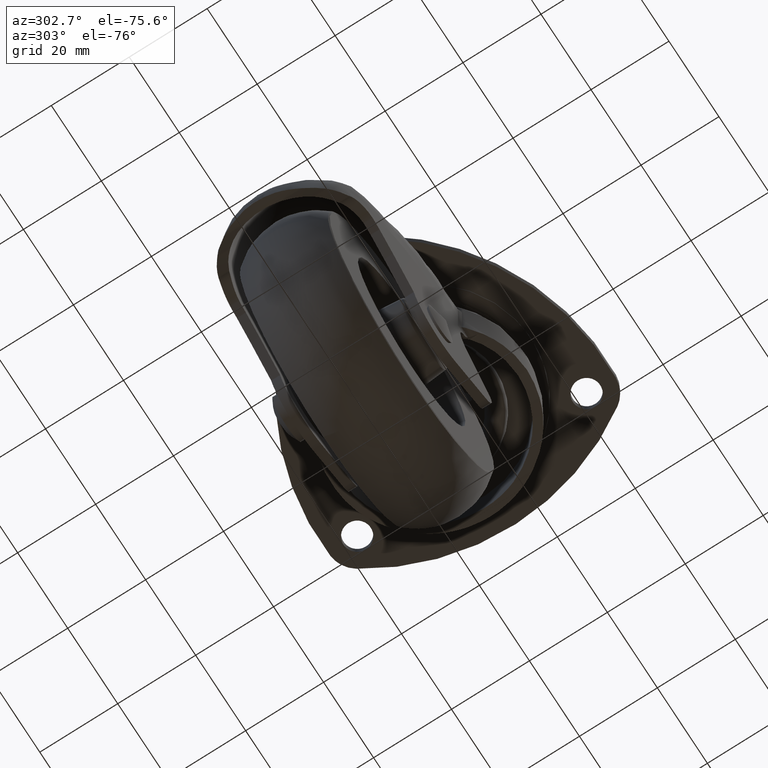
[diagram: clean part render]
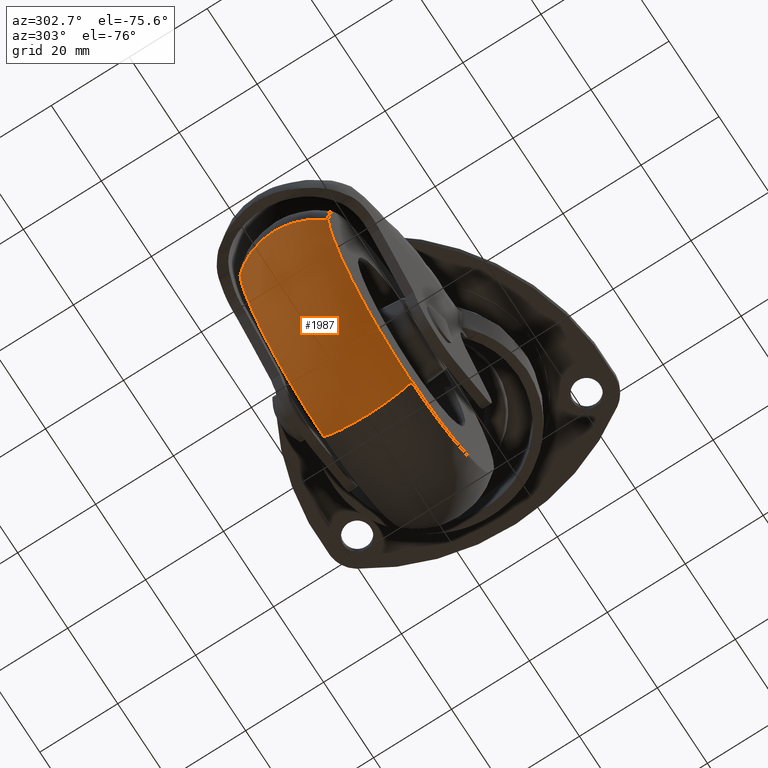
[diagram: same view with one face highlighted and labeled with its STEP entity id]
A machine part, auxiliary view. The second image highlights one B-rep face of the part: STEP entity #1987.
In plain terms, the highlighted face is a freeform B-spline surface patch.
Its self-contained STEP definition (entity closure, byte-faithful):
#1595=CARTESIAN_POINT('',(0.416828760800107,11.333333355749589,-90.668432805636684));
#1596=VERTEX_POINT('',#1595);
#1612=CARTESIAN_POINT('',(0.0,11.333333356382060,-90.671051851883405));
#1613=VERTEX_POINT('',#1612);
#1614=CARTESIAN_POINT('',(0.416828760800107,11.333333355749589,-90.668432805636684));
#1615=CARTESIAN_POINT('',(0.208422608607754,11.333333356382063,-90.671051851883405));
#1616=CARTESIAN_POINT('',(0.0,11.333333356382060,-90.671051851883405));
#1624=(BOUNDED_CURVE()B_SPLINE_CURVE(2,(#1614,#1615,#1616),.UNSPECIFIED.,.F.,.U.)B_SPLINE_CURVE_WITH_KNOTS((3,3),(0.497784295919083,0.500000000000000),.UNSPECIFIED.)CURVE()GEOMETRIC_REPRESENTATION_ITEM()RATIONAL_B_SPLINE_CURVE((0.994854295637923,0.997404141199208,1.0))REPRESENTATION_ITEM(''));
#1625=EDGE_CURVE('',#1596,#1613,#1624,.T.);
#1627=CARTESIAN_POINT('',(-33.090302693076737,11.333333355856499,-59.813125304016403));
#1628=VERTEX_POINT('',#1627);
#1629=CARTESIAN_POINT('',(0.0,11.333333356382060,-90.671051851883405));
#1630=CARTESIAN_POINT('',(-30.933228114146491,11.333333356382060,-90.671051851883419));
#1631=CARTESIAN_POINT('',(-33.090302693076737,11.333333355856494,-59.813125304016395));
#1639=(BOUNDED_CURVE()B_SPLINE_CURVE(2,(#1629,#1630,#1631),.UNSPECIFIED.,.F.,.U.)B_SPLINE_CURVE_WITH_KNOTS((3,3),(0.500000000000000,0.737833686533324),.UNSPECIFIED.)CURVE()GEOMETRIC_REPRESENTATION_ITEM()RATIONAL_B_SPLINE_CURVE((1.0,0.721360504035940,0.972879876383238))REPRESENTATION_ITEM(''));
#1640=EDGE_CURVE('',#1613,#1628,#1639,.T.);
#1838=CARTESIAN_POINT('',(-33.090302804285010,-11.333333300399801,-59.813125311760203));
#1839=VERTEX_POINT('',#1838);
#1840=CARTESIAN_POINT('',(-33.090302804285017,-11.333333300399797,-59.813125311760203));
#1841=CARTESIAN_POINT('',(-43.202467799018386,0.000000077401135,-60.520000221249369));
#1842=CARTESIAN_POINT('',(-33.090302693076730,11.333333355856498,-59.813125304016395));
#1850=(BOUNDED_CURVE()B_SPLINE_CURVE(2,(#1840,#1841,#1842),.UNSPECIFIED.,.F.,.U.)B_SPLINE_CURVE_WITH_KNOTS((3,3),(-1.710040864885921,-0.289959127885270),.UNSPECIFIED.)CURVE()GEOMETRIC_REPRESENTATION_ITEM()RATIONAL_B_SPLINE_CURVE((0.868722746552523,0.647507706763222,0.868722748804677))REPRESENTATION_ITEM(''));
#1851=EDGE_CURVE('',#1839,#1628,#1850,.T.);
#1902=CARTESIAN_POINT('',(0.416828762165187,-11.333333300299740,-90.668432917099764));
#1903=VERTEX_POINT('',#1902);
#1917=CARTESIAN_POINT('',(0.416828762165187,-11.333333300299737,-90.668432917099750));
#1918=CARTESIAN_POINT('',(0.544208714928569,0.000000077388814,-100.804473927150990));
#1919=CARTESIAN_POINT('',(0.416828760800107,11.333333355749588,-90.668432805636684));
#1927=(BOUNDED_CURVE()B_SPLINE_CURVE(2,(#1917,#1918,#1919),.UNSPECIFIED.,.F.,.U.)B_SPLINE_CURVE_WITH_KNOTS((3,3),(-1.710040864869099,-0.289959127903242),.UNSPECIFIED.)CURVE()GEOMETRIC_REPRESENTATION_ITEM()RATIONAL_B_SPLINE_CURVE((0.888713648390262,0.662408045294405,0.888713650693876))REPRESENTATION_ITEM(''));
#1928=EDGE_CURVE('',#1903,#1596,#1927,.T.);
#1936=CARTESIAN_POINT('',(0.407129190061715,-12.141247478081578,-89.896606140943092));
#1937=CARTESIAN_POINT('',(-30.186717260248503,-12.141247478081581,-90.281079992061834));
#1938=CARTESIAN_POINT('',(-32.320294109687318,-12.141247478081578,-59.759299070973874));
#1939=CARTESIAN_POINT('',(0.562800502157988,-0.000000330962834,-102.283883468472240));
#1940=CARTESIAN_POINT('',(-41.729013903409282,-0.000000330962833,-102.815366058663020));
#1941=CARTESIAN_POINT('',(-44.678392507470555,-0.000000330962834,-60.623172404996126));
#1942=CARTESIAN_POINT('',(0.407129194219764,12.141247153783556,-89.896606471812660));
#1943=CARTESIAN_POINT('',(-30.186717568548289,12.141247153783549,-90.281080326858131));
#1944=CARTESIAN_POINT('',(-32.320294439777527,12.141247153783555,-59.759299094048316));
#1952=(BOUNDED_SURFACE()B_SPLINE_SURFACE(2,2,((#1936,#1939,#1942),(#1937,#1940,#1943),(#1938,#1941,#1944)),.UNSPECIFIED.,.F.,.F.,.U.)B_SPLINE_SURFACE_WITH_KNOTS((3,3),(3,3),(0.0,59.630383451579640),(0.0,28.568466749480461),.UNSPECIFIED.)GEOMETRIC_REPRESENTATION_ITEM()RATIONAL_B_SPLINE_SURFACE(((0.912450913483905,0.638670786576356,0.912450903036333),(0.655890255826712,0.459090937831586,0.655890248316762),(0.891926060871329,0.624304398676774,0.891926050658767)))REPRESENTATION_ITEM('')SURFACE());
#1953=ORIENTED_EDGE('',*,*,#1640,.F.);
#1954=ORIENTED_EDGE('',*,*,#1625,.F.);
#1955=ORIENTED_EDGE('',*,*,#1928,.F.);
#1956=CARTESIAN_POINT('',(0.0,-11.333333331469920,-90.671051997916635));
#1957=VERTEX_POINT('',#1956);
#1958=CARTESIAN_POINT('',(0.416828762165187,-11.333333300299733,-90.668432917099764));
#1959=CARTESIAN_POINT('',(0.208422609489641,-11.333333331469921,-90.671051997916621));
#1960=CARTESIAN_POINT('',(0.0,-11.333333331469920,-90.671051997916635));
#1968=(BOUNDED_CURVE()B_SPLINE_CURVE(2,(#1958,#1959,#1960),.UNSPECIFIED.,.F.,.U.)B_SPLINE_CURVE_WITH_KNOTS((3,3),(0.497784295919461,0.500000000000000),.UNSPECIFIED.)CURVE()GEOMETRIC_REPRESENTATION_ITEM()RATIONAL_B_SPLINE_CURVE((0.994854295638794,0.997404141199651,1.0))REPRESENTATION_ITEM(''));
#1969=EDGE_CURVE('',#1903,#1957,#1968,.T.);
#1970=ORIENTED_EDGE('',*,*,#1969,.T.);
#1971=CARTESIAN_POINT('',(0.0,-11.333333331469920,-90.671051997916635));
#1972=CARTESIAN_POINT('',(-30.933228250383916,-11.333333331469920,-90.671051997916635));
#1973=CARTESIAN_POINT('',(-33.090302804285010,-11.333333300399801,-59.813125311760203));
#1981=(BOUNDED_CURVE()B_SPLINE_CURVE(2,(#1971,#1972,#1973),.UNSPECIFIED.,.F.,.U.)B_SPLINE_CURVE_WITH_KNOTS((3,3),(0.500000000000000,0.737833686533635),.UNSPECIFIED.)CURVE()GEOMETRIC_REPRESENTATION_ITEM()RATIONAL_B_SPLINE_CURVE((1.0,0.721360504035576,0.972879876383895))REPRESENTATION_ITEM(''));
#1982=EDGE_CURVE('',#1957,#1839,#1981,.T.);
#1983=ORIENTED_EDGE('',*,*,#1982,.T.);
#1984=ORIENTED_EDGE('',*,*,#1851,.T.);
#1985=EDGE_LOOP('',(#1953,#1954,#1955,#1970,#1983,#1984));
#1986=FACE_OUTER_BOUND('',#1985,.T.);
#1987=ADVANCED_FACE('',(#1986),#1952,.T.);